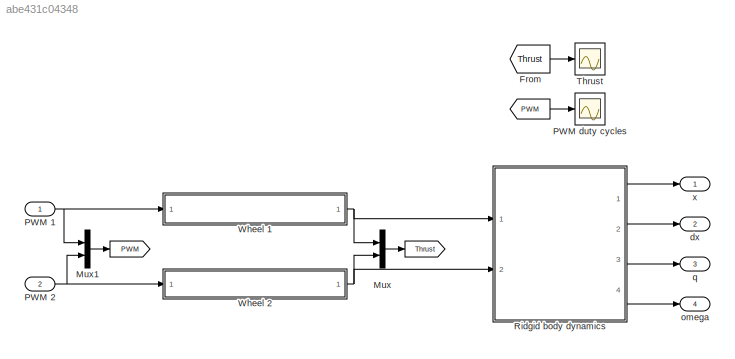
MODEL slx_abe431c04348
KIND model
CONFIG AbsTol = auto
CONFIG FixedStep = auto
CONFIG MaxStep = auto
CONFIG MinStep = auto
CONFIG RelTol = 1e-3
CONFIG SampleTimeConstraint = Unconstrained
CONFIG Solver = VariableStepAuto
CONFIG SolverMode = Auto
CONFIG SolverName = VariableStepAuto
CONFIG StartTime = 0.0
CONFIG StopTime = 10.0
BLOCK [Goto]  
  GotoTag = Thrust
BLOCK [From]    
  GotoTag = PWM
BLOCK [Goto]       
  GotoTag = PWM
BLOCK [From] From
  GotoTag = Thrust
BLOCK [Mux] Mux
  DisplayOption = bar
  Inputs = 2
  Ports = [2, 1]
BLOCK [Mux] Mux1
  DisplayOption = bar
  Inputs = 2
  Ports = [2, 1]
BLOCK [Inport] PWM 1
  IconDisplay = Port number
BLOCK [Inport] PWM 2
  IconDisplay = Port number
  Port = 2
BLOCK [Scope] PWM duty cycles
  Ports = [1]
  ScopeSpecificationString = Simulink.scopes.TimeScopeBlockCfg('CurrentConfiguration', extmgr.ConfigurationSet(extmgr.Configuration('Core','General UI',true),extmgr.Configuration('Core','Source UI',true),extmgr.Configuration('Sources','WiredSimulink',true,'DataLoggingVariableName','ScopeData1','DataLoggingLimitDataPoints',true,'DataLoggingSaveFormat','Array','DataLoggingDecimation','1','DataLoggingDecimateData',true),extmgr.C...<+1493ch>
BLOCK [ModelReference] Ridgid body dynamics
  ModelNameDialog = rigid_body_model.slx
  ModelReferenceVersion = 1.165
  Ports = [2, 4]
  Variant = off
BLOCK [Scope] Thrust
  Ports = [1]
  ScopeSpecificationString = Simulink.scopes.TimeScopeBlockCfg('CurrentConfiguration', extmgr.ConfigurationSet(extmgr.Configuration('Core','General UI',true),extmgr.Configuration('Core','Source UI',true),extmgr.Configuration('Sources','WiredSimulink',true,'DataLoggingVariableName','ScopeData3'),extmgr.Configuration('Visuals','Time Domain',true,'SerializedDisplays',{struct('MinYLimReal','-1.00000','MaxYLimReal','1.00000','YLab...<+1368ch>
BLOCK [ModelReference] Wheel 1
  ModelNameDialog = wheel_model.slx
  ModelReferenceVersion = 1.6
  Ports = [1, 1]
  Variant = off
BLOCK [ModelReference] Wheel 2
  ModelNameDialog = wheel_model.slx
  ModelReferenceVersion = 1.6
  Ports = [1, 1]
  Variant = off
BLOCK [Outport] dx
  IconDisplay = Port number
  Port = 2
BLOCK [Outport] omega
  IconDisplay = Port number
  Port = 4
BLOCK [Outport] q
  IconDisplay = Port number
  Port = 3
BLOCK [Outport] x
  IconDisplay = Port number
LINE    :1 -> PWM duty cycles:1
LINE From:1 -> Thrust:1
LINE Mux1:1 ->       :1
LINE Mux:1 ->  :1
NET PWM 1:1 -> Mux1:1, Wheel 1:1
NET PWM 2:1 -> Mux1:2, Wheel 2:1
LINE Ridgid body dynamics:1 -> x:1
LINE Ridgid body dynamics:2 -> dx:1
LINE Ridgid body dynamics:3 -> q:1
LINE Ridgid body dynamics:4 -> omega:1
NET Wheel 1:1 -> Mux:1, Ridgid body dynamics:1
NET Wheel 2:1 -> Mux:2, Ridgid body dynamics:2
note: NET lines group one-source signal fan-out (src -> all destinations, sorted); 1:1 wires keep LINE
